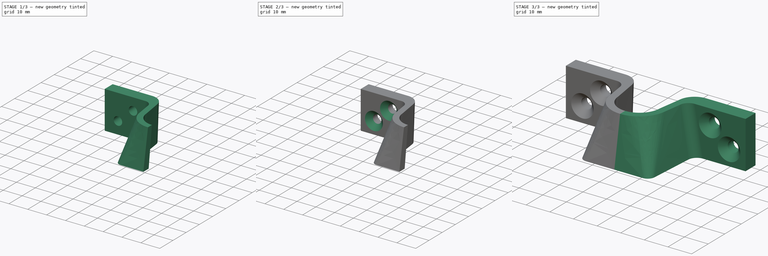
[diagram: build sequence overview — one tinted view per stage of 3, left to right]
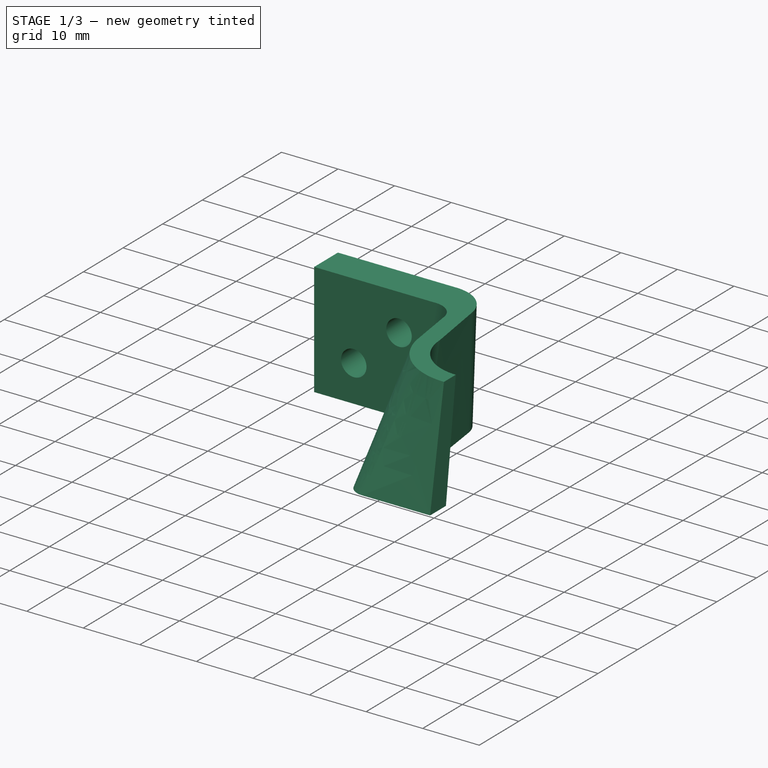
[diagram: stage 1 of 3 — iso view after this stage's code; geometry added in this stage tinted green]
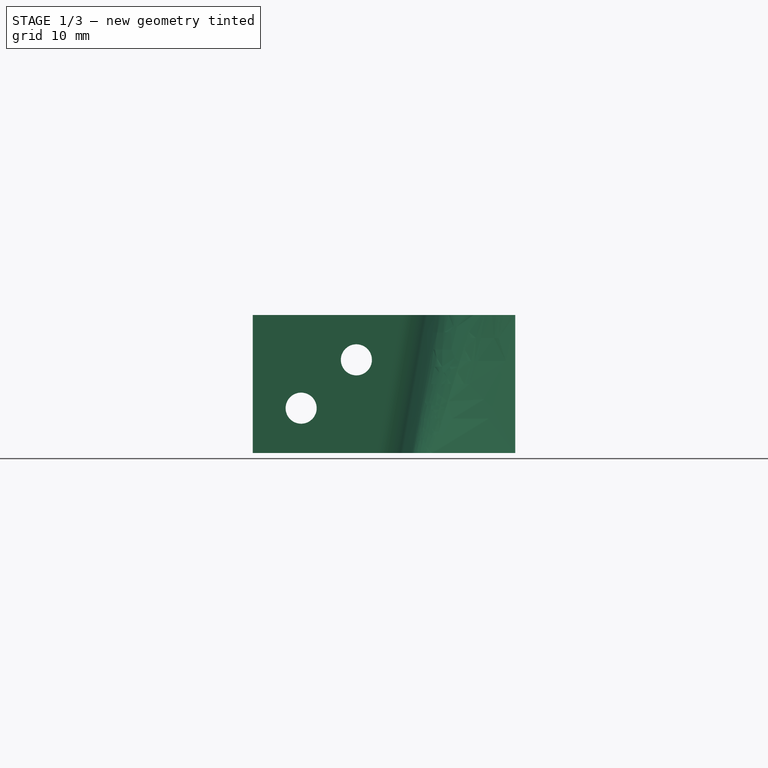
[diagram: stage 1 of 3 — front view after this stage's code; geometry added in this stage tinted green]
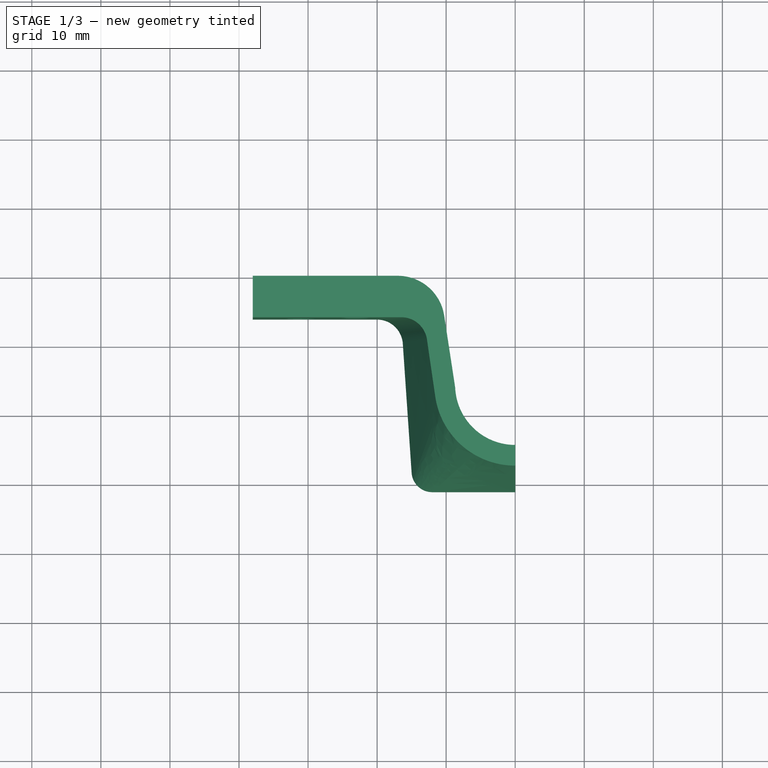
[diagram: stage 1 of 3 — top view after this stage's code; geometry added in this stage tinted green]
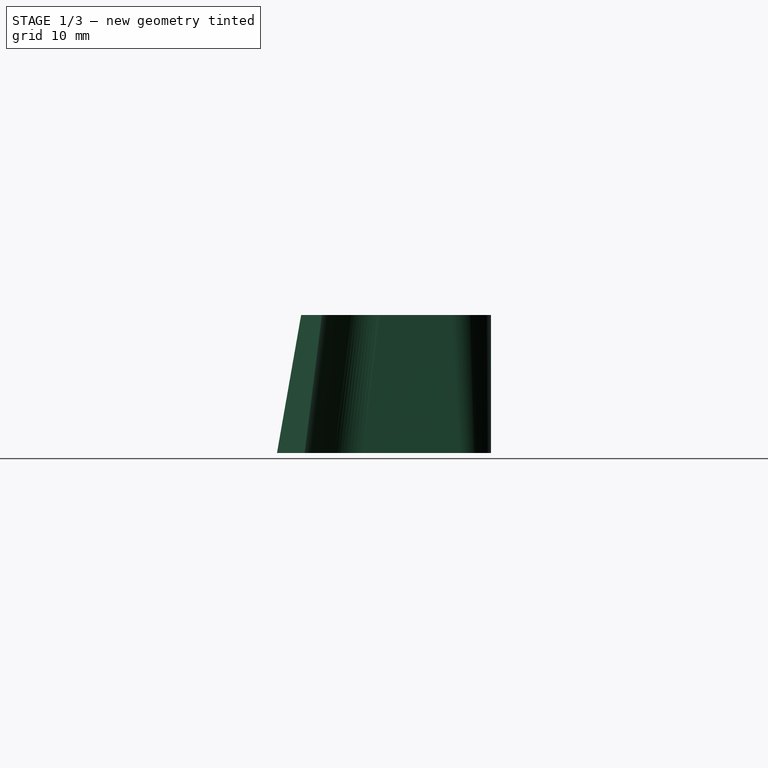
[diagram: stage 1 of 3 — right view after this stage's code; geometry added in this stage tinted green]
FCSTD DOCUMENT  (FreeCAD 0.16R6712 (Git))
Label: Cremone
License: All rights reserved
LicenseURL: http://en.wikipedia.org/wiki/All_rights_reserved
objects: Sketcher::SketchObject×3, Part::Loft×1, PartDesign::Pocket×1, PartDesign::Chamfer×1, Part::Mirroring×1, Part::Fuse×1
note: 9 computed .brp shape members not serialized (recipe doc carries the construction recipe); baked Part::Feature solids carry a one-line shape summary decoded from their .brp

FEATURE [Sketcher::SketchObject] Sketch  label="Demi face inférieure"
  sketch-geometry (13):
    g0: LineSegment StartX=-17 StartY=0 StartZ=0 EndX=-38 EndY=0 EndZ=0
    g1: LineSegment StartX=-38 StartY=0 StartZ=0 EndX=-38 EndY=-6 EndZ=0
    g2: LineSegment StartX=-38 StartY=-6 StartZ=0 EndX=-20 EndY=-6 EndZ=0
    g3: LineSegment StartX=-16.2776 StartY=-9.47708 StartZ=0 EndX=-15 EndY=-28.1978 EndZ=0
    g4: LineSegment StartX=-11.6832 StartY=-4.64596 StartZ=0 EndX=-9.78932 EndY=-18.6449 EndZ=0
    g5: LineSegment StartX=-12 StartY=-31 StartZ=0 EndX=0 EndY=-31 EndZ=0
    g6: ArcOfCircle CenterX=-20 CenterY=-9.73111 CenterZ=0 NormalX=0 NormalY=0 NormalZ=1 Radius=3.73111 StartAngle=0.0681371 EndAngle=1.5708
    g7: ArcOfCircle CenterX=-17 CenterY=-5.36525 CenterZ=0 NormalX=0 NormalY=0 NormalZ=1 Radius=5.36525 StartAngle=0.13447 EndAngle=1.5708
    g8: ArcOfCircle CenterX=0 CenterY=-17.0876 CenterZ=0 NormalX=0 NormalY=0 NormalZ=1 Radius=9.91241 StartAngle=3.29935 EndAngle=4.71239
    g9: LineSegment StartX=0 StartY=-31 StartZ=0 EndX=0 EndY=-27 EndZ=0
    g10: LineSegment [constr] StartX=-20 StartY=-6 StartZ=0 EndX=-11.5 EndY=-6 EndZ=0
    g11: LineSegment [constr] StartX=0 StartY=-17.0876 StartZ=0 EndX=-10 EndY=-17.0876 EndZ=0
    g12: ArcOfCircle CenterX=-12 CenterY=-27.993 CenterZ=0 NormalX=0 NormalY=0 NormalZ=1 Radius=3.00698 StartAngle=3.20973 EndAngle=4.71239
  constraints (37):
    c: Horizontal(g0)
    c: Coincident(g0,g1)
    c: Vertical(g1)
    c: Coincident(g1,g2)
    c: Horizontal(g2)
    c: DistanceY(g1,g0) = 6
    c: Horizontal(g5)
    c: PointOnObject(g5,g-2)
    c: Tangent(g2,g6) = 1.5708
    c: Tangent(g3,g6) = 1.5708
    c: DistanceX(g1,g2) = 18
    c: Tangent(g0,g7) = -1.5708
    c: Tangent(g4,g7) = 1.5708
    c: DistanceX(g0,g0) = 21
    c: DistanceX(g1,g5) = 38
    c: PointOnObject(g8,g-2)
    c: PointOnObject(g8,g-2)
    c: DistanceY(g8,g0) = 27
    c: DistanceX(g6,g3) = 3.72245
    c: Coincident(g9,g5)
    c: Coincident(g9,g8)
    c: PointOnObject(g0,g-1)
    c: Coincident(g10,g2)
    c: PointOnObject(g10,g4)
    c: Horizontal(g10)
    c: DistanceX(g10,g-1) = 11.5
    c: Coincident(g11,g8)
    c: PointOnObject(g11,g4)
    c: Horizontal(g11)
    c: DistanceX(g11,g8) = 10
    c: Coincident(g4,g8)
    c: DistanceY(g8,g4) = 8.35514
    c: DistanceY(g5,g8) = 4
    c: Tangent(g3,g12) = -1.5708
    c: Tangent(g5,g12) = -1.5708
    c: DistanceX(g5,g5) = 12
    c: DistanceX(g3,g5) = 3
FEATURE [Sketcher::SketchObject] Sketch001  label="Demi face supérieure"
  Placement = pos=(0,0,20) rot=(0,0,1;0rad)
  sketch-geometry (13):
    g0: LineSegment StartX=-17 StartY=0 StartZ=0 EndX=-38 EndY=0 EndZ=0
    g1: LineSegment StartX=-38 StartY=0 StartZ=0 EndX=-38 EndY=-6 EndZ=0
    g2: LineSegment StartX=-38 StartY=-6 StartZ=0 EndX=-16.5 EndY=-6 EndZ=0
    g3: LineSegment StartX=-12.7775 StartY=-9.22066 StartZ=0 EndX=-11.6237 EndY=-17.1614 EndZ=0
    g4: LineSegment StartX=-10.2861 StartY=-5.76411 StartZ=0 EndX=-8.69664 EndY=-16.1449 EndZ=0
    g5: ArcOfCircle CenterX=-16.5 CenterY=-9.76154 CenterZ=0 NormalX=0 NormalY=0 NormalZ=1 Radius=3.76154 StartAngle=0.144292 EndAngle=1.5708
    g6: ArcOfCircle CenterX=-17 CenterY=-6.79213 CenterZ=0 NormalX=0 NormalY=0 NormalZ=1 Radius=6.79213 StartAngle=0.151938 EndAngle=1.5708
    g7: ArcOfCircle CenterX=0 CenterY=-15.7964 CenterZ=0 NormalX=0 NormalY=0 NormalZ=1 Radius=8.70362 StartAngle=3.18164 EndAngle=4.71239
    g8: LineSegment StartX=0 StartY=-27.5 StartZ=0 EndX=0 EndY=-24.5 EndZ=0
    g9: LineSegment [constr] StartX=-16.5 StartY=-6 StartZ=0 EndX=-10.25 EndY=-6 EndZ=0
    g10: LineSegment [constr] StartX=0 StartY=-15.7964 StartZ=0 EndX=-8.75 EndY=-15.7964 EndZ=0
    g11: ArcOfCircle CenterX=0 CenterY=-15.7964 CenterZ=0 NormalX=0 NormalY=0 NormalZ=1 Radius=11.7036 StartAngle=3.25849 EndAngle=4.17411
    g12: ArcOfCircle CenterX=0 CenterY=-15.7964 CenterZ=0 NormalX=0 NormalY=0 NormalZ=1 Radius=11.7036 StartAngle=4.17411 EndAngle=4.71239
  constraints (38):
    c: Horizontal(g0)
    c: Coincident(g0,g1)
    c: Vertical(g1)
    c: Coincident(g1,g2)
    c: Horizontal(g2)
    c: DistanceY(g1,g0) = 6
    c: PointOnObject(g8,g-2)
    c: Tangent(g2,g5) = 1.5708
    c: Tangent(g3,g5) = 1.5708
    c: DistanceX(g1,g2) = 21.5
    c: Tangent(g0,g6) = -1.5708
    c: Tangent(g4,g6) = 1.5708
    c: DistanceX(g0,g0) = 21
    c: DistanceX(g1,g8) = 38
    c: PointOnObject(g7,g-2)
    c: PointOnObject(g7,g-2)
    c: DistanceY(g7,g0) = 24.5
    c: DistanceX(g5,g3) = 3.72245
    c: Coincident(g8,g7)
    c: PointOnObject(g0,g-1)
    c: Coincident(g9,g2)
    c: PointOnObject(g9,g4)
    c: Horizontal(g9)
    c: DistanceX(g9,g-1) = 10.25
    c: Coincident(g10,g7)
    c: PointOnObject(g10,g4)
    c: Horizontal(g10)
    c: DistanceX(g10,g7) = 8.75
    c: Coincident(g4,g7)
    c: DistanceY(g7,g4) = 8.35514
    c: DistanceY(g8,g7) = 3
    c: DistanceY(g3,g4) = 1.01654
    c: Coincident(g11,g7)
    c: Coincident(g11,g3)
    c: Coincident(g12,g7)
    c: Coincident(g12,g11)
    c: Coincident(g12,g8)
    c: DistanceX(g11,g8) = 6
FEATURE [Part::Loft] Loft
  Closed = false
  Ruled = false
  Sections = -> [Sketch,Sketch001]
  Solid = true
FEATURE [Sketcher::SketchObject] Sketch002
  ExternalGeometry = -> [Loft]
  Placement = pos=(0,0,0) rot=(0,0.707107,0.707107;3.14159rad)
  Support = -> Loft [Face2]
  sketch-geometry (2):
    g0: Circle CenterX=23 CenterY=13.5 CenterZ=0 NormalX=0 NormalY=0 NormalZ=1 Radius=2.25
    g1: Circle CenterX=31 CenterY=6.5 CenterZ=0 NormalX=0 NormalY=0 NormalZ=1 Radius=2.25
  constraints (6):
    c: Radius(g0) = 2.25
    c: DistanceY(g0,g-3) = 6.5
    c: DistanceX(g0,g-3) = 15
    c: Radius(g1) = 2.25
    c: DistanceX(g1,g-3) = 7
    c: DistanceY(g-4,g1) = 6.5
FEATURE [PartDesign::Pocket] Pocket
  Length = 5
  Sketch = -> Sketch002
  Type = 1
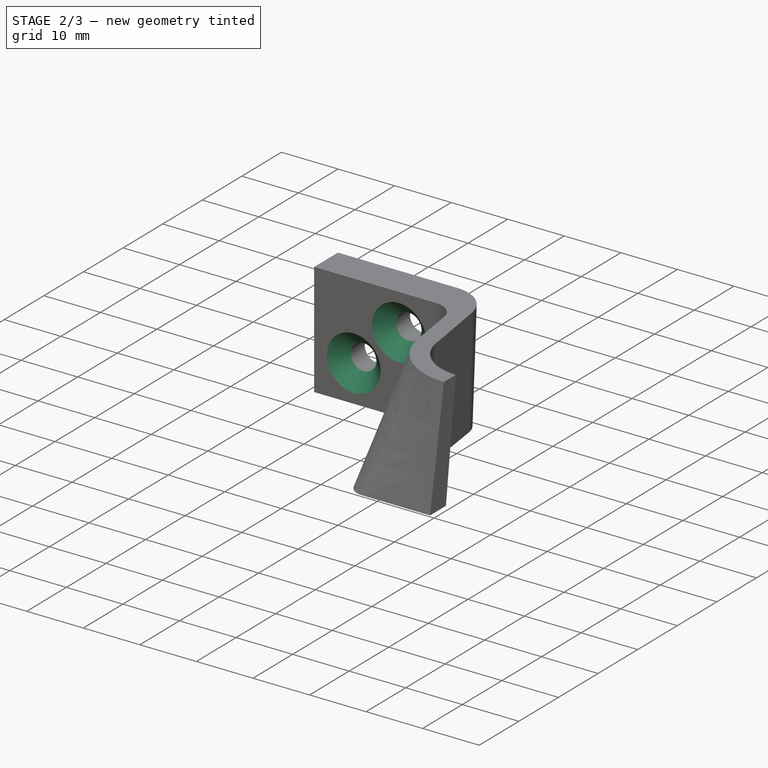
[diagram: stage 2 of 3 — iso view after this stage's code; geometry added in this stage tinted green]
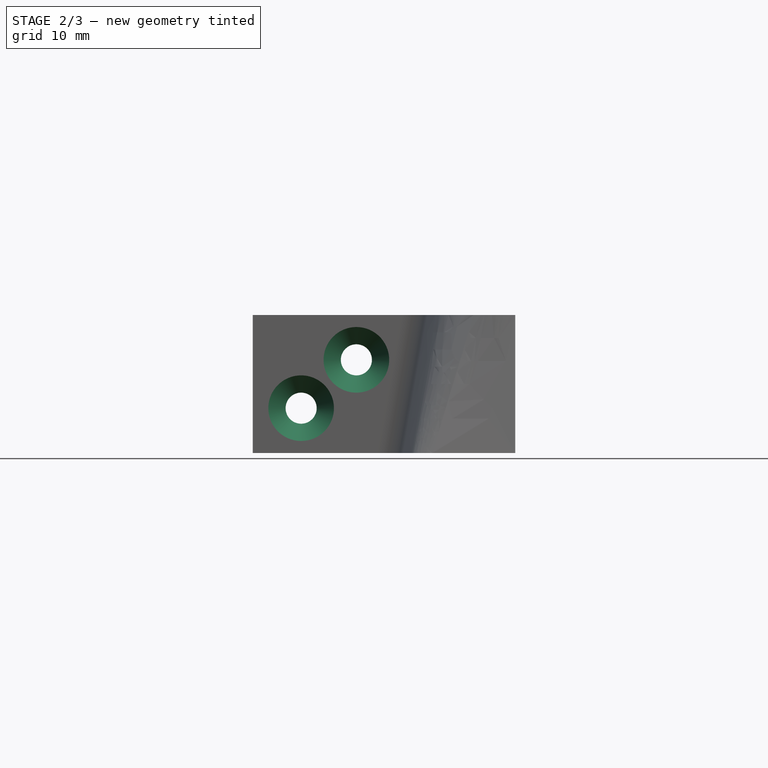
[diagram: stage 2 of 3 — front view after this stage's code; geometry added in this stage tinted green]
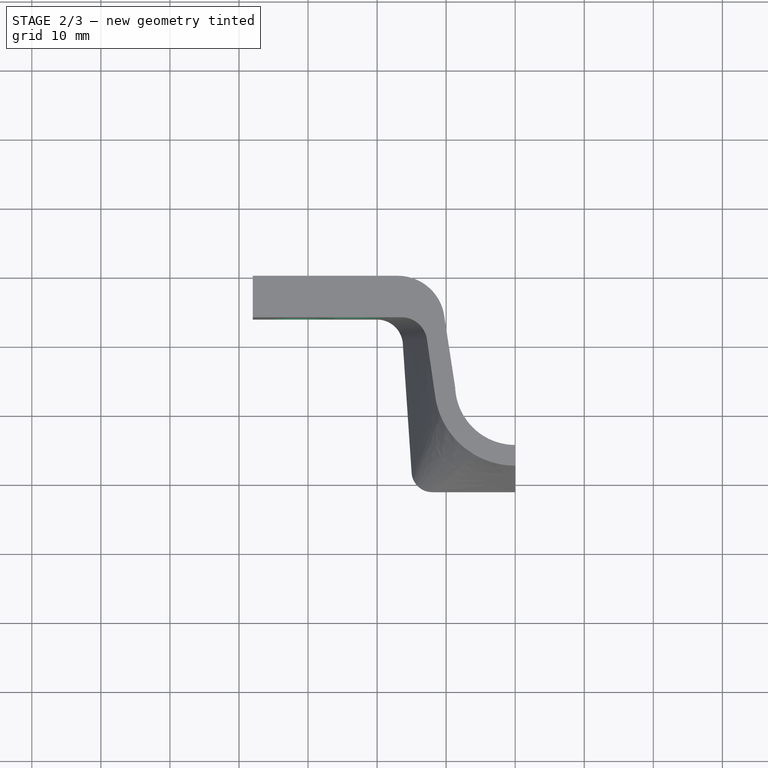
[diagram: stage 2 of 3 — top view after this stage's code; geometry added in this stage tinted green]
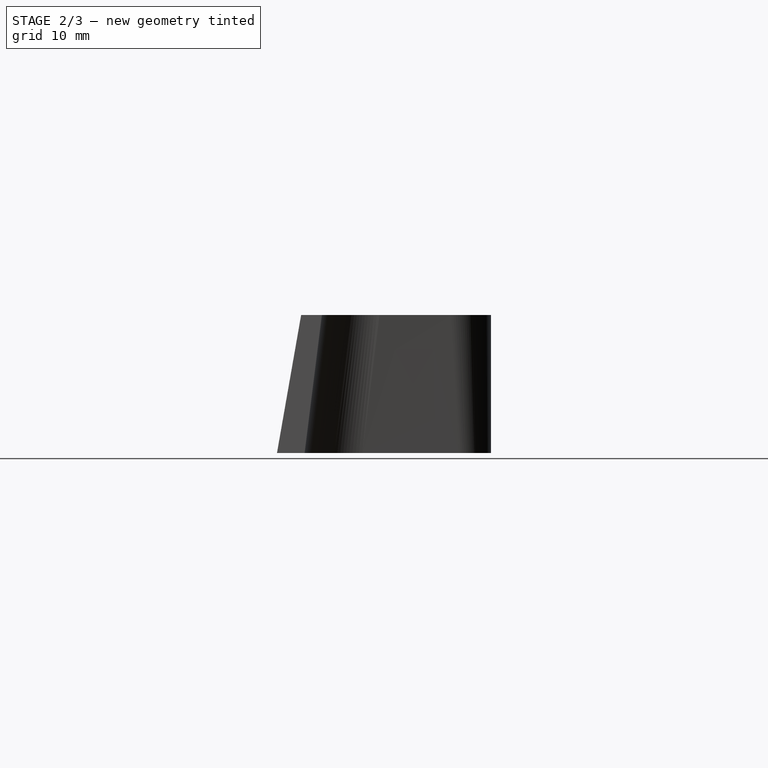
[diagram: stage 2 of 3 — right view after this stage's code; geometry added in this stage tinted green]
FEATURE [PartDesign::Chamfer] Chamfer
  Base = -> Pocket [Edge31,Edge32,Edge33,Edge34]
  Size = 2.5
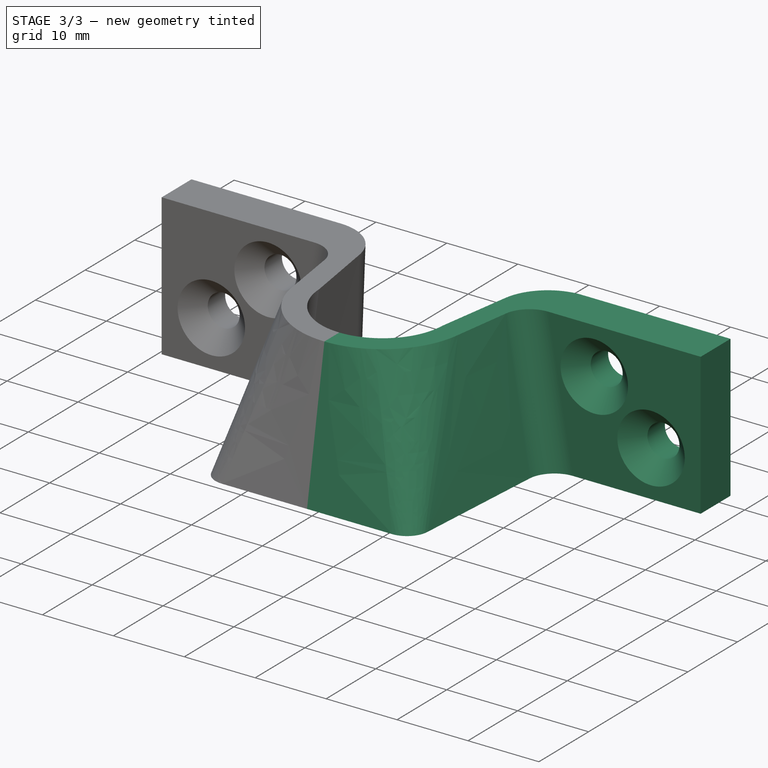
[diagram: stage 3 of 3 — iso view after this stage's code; geometry added in this stage tinted green]
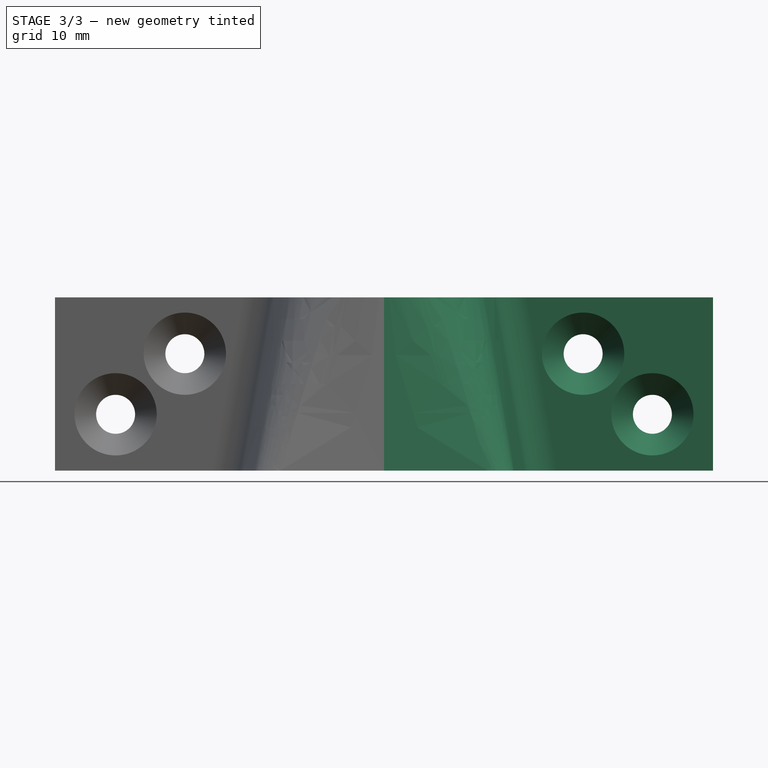
[diagram: stage 3 of 3 — front view after this stage's code; geometry added in this stage tinted green]
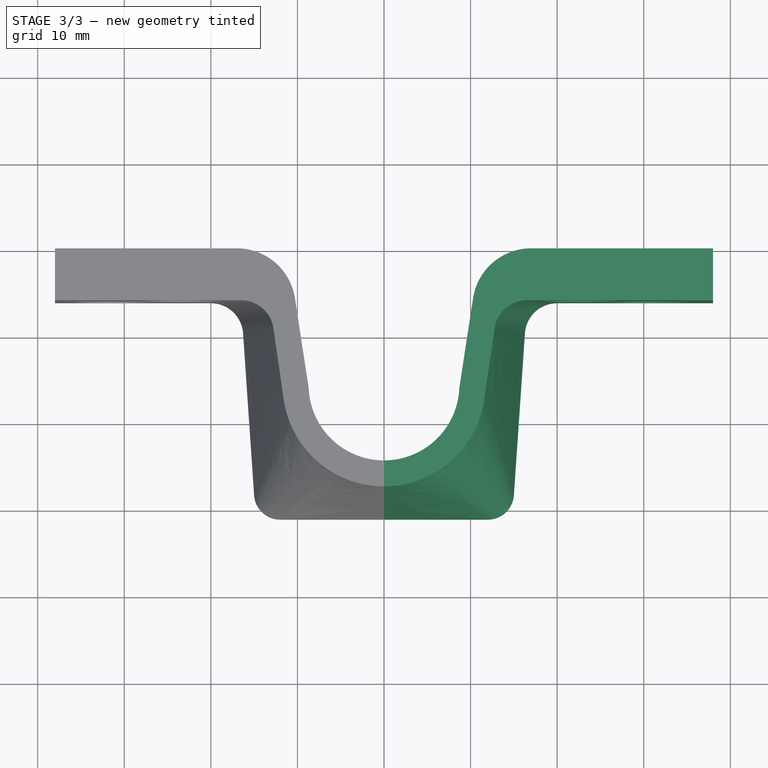
[diagram: stage 3 of 3 — top view after this stage's code; geometry added in this stage tinted green]
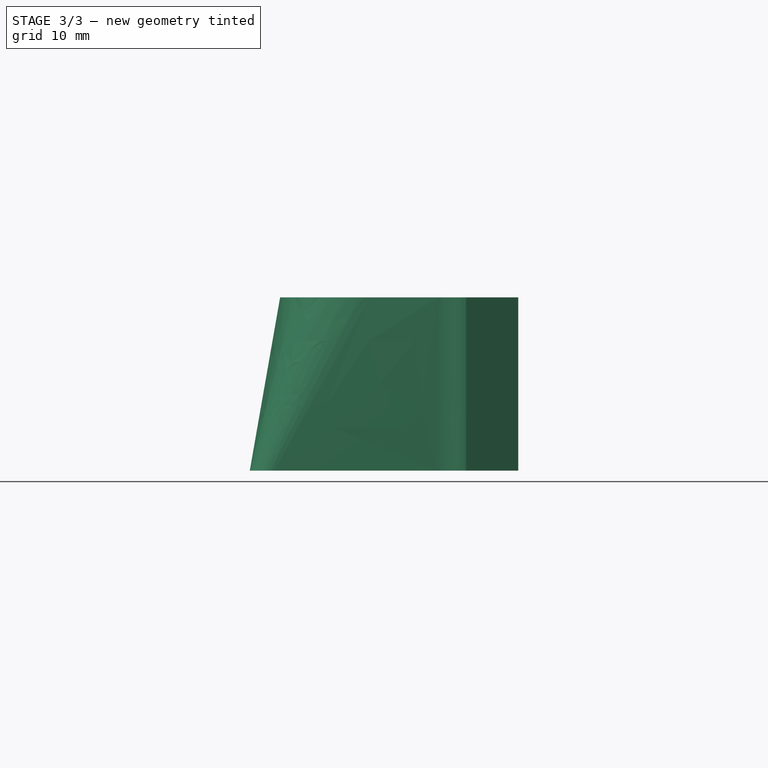
[diagram: stage 3 of 3 — right view after this stage's code; geometry added in this stage tinted green]
FEATURE [Part::Mirroring] Part__Mirroring  label="Chamfer (Mirror #1)"
  Base = (0,0,0)
  Normal = (1,0,0)
  Source = -> Chamfer
FEATURE [Part::Fuse] Fusion
  Base = -> Chamfer
  Tool = -> Part__Mirroring
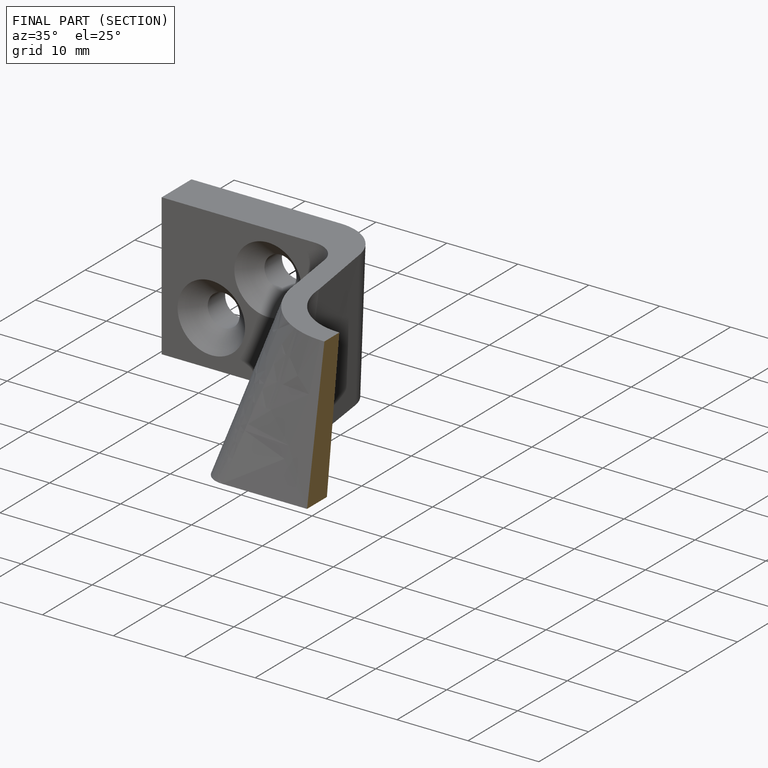
[diagram: finished part — half-section view (interior)]
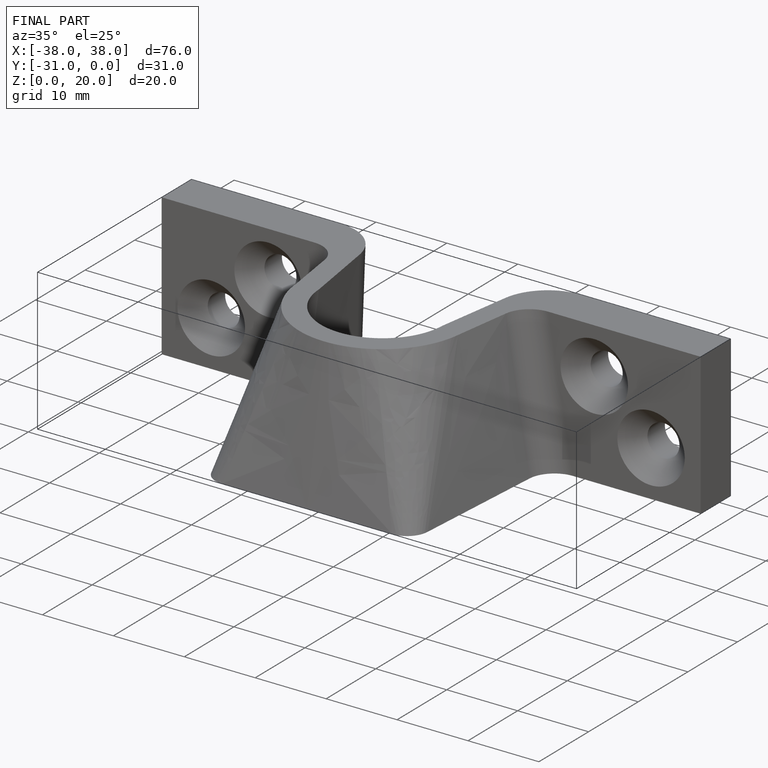
[diagram: finished part — iso view with bounding-box wireframe]
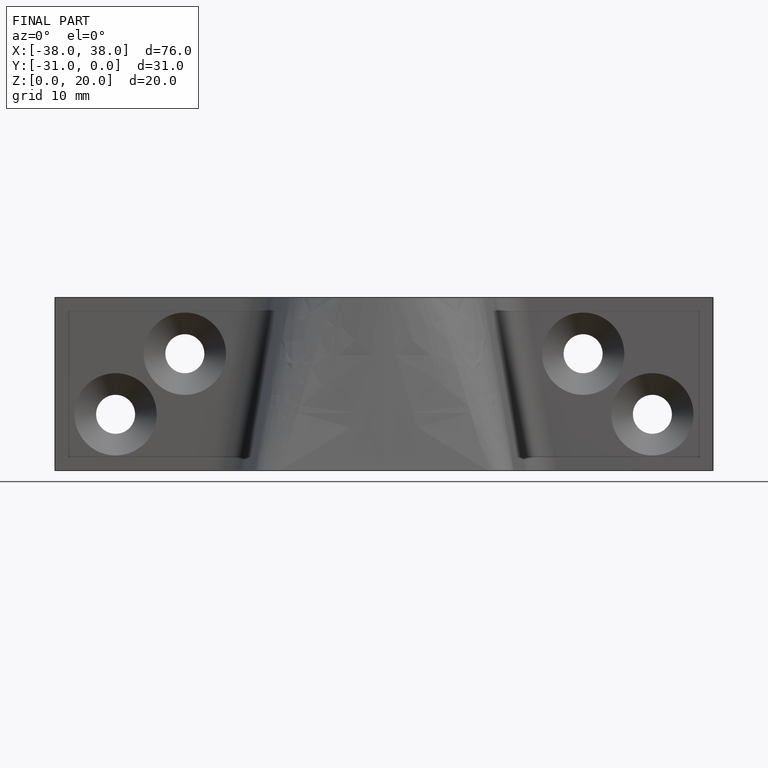
[diagram: finished part — front view with bounding-box wireframe]
